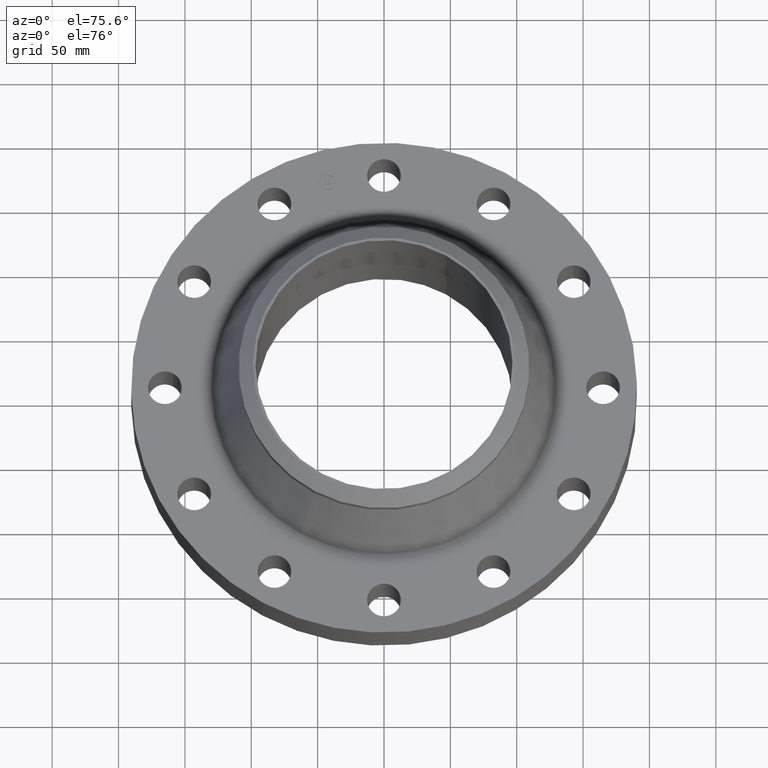
[diagram: clean part render]
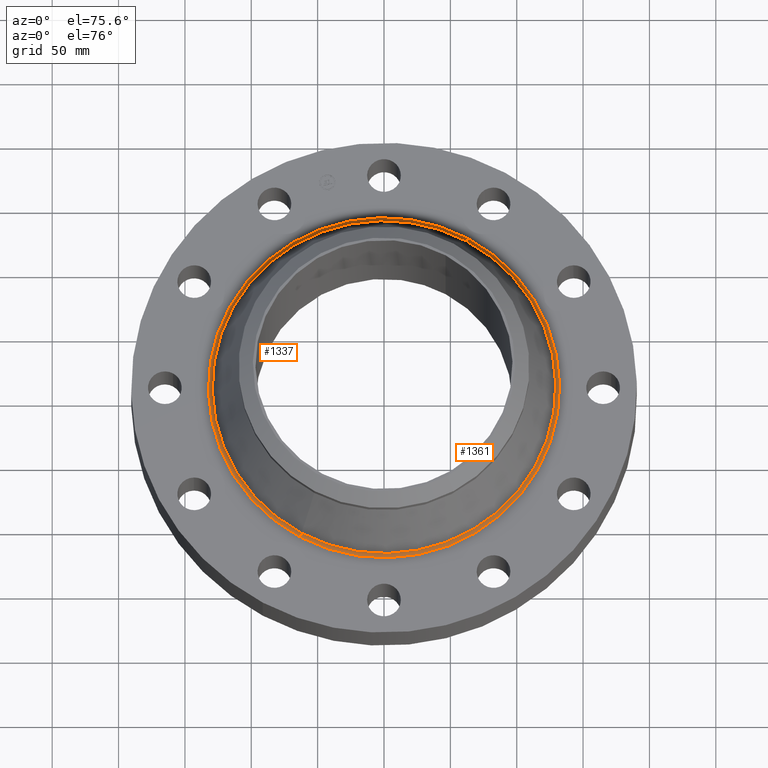
[diagram: same view with one multi-face feature highlighted, each face labeled with its STEP entity id]
A machine part, auxiliary view. The highlighted faces form ONE feature: a constant-radius fillet chain: 2 tangent blend faces with common blend radius 3.048 mm. The faces share edges in the B-rep.
Their STEP definitions:
[1] entity #1361 (Torus):
#426=AXIS2_PLACEMENT_3D('Circle Axis2P3D',#424,#425,$) ;
#1314=AXIS2_PLACEMENT_3D('Circle Axis2P3D',#1312,#1313,$) ;
#1328=AXIS2_PLACEMENT_3D('Circle Axis2P3D',#1326,#1327,$) ;
#1348=AXIS2_PLACEMENT_3D('Torus Axis2P3D',#1345,#1346,#1347) ;
#1352=AXIS2_PLACEMENT_3D('Circle Axis2P3D',#1350,#1351,$) ;
#419=CARTESIAN_POINT('Vertex',(-2.49717184861,-4.57104240788,1.56000000001)) ;
#421=CARTESIAN_POINT('Vertex',(2.49717184861,4.57104240788,1.56000000001)) ;
#424=CARTESIAN_POINT('Axis2P3D Location',(-4.3665928266E-011,1.71884204158E-011,1.56000000001)) ;
#1312=CARTESIAN_POINT('Axis2P3D Location',(-2.49717184861,-4.57104240788,1.68000000001)) ;
#1316=CARTESIAN_POINT('Vertex',(-2.4431878359,-4.47222533545,1.63851611678)) ;
#1323=CARTESIAN_POINT('Vertex',(2.4431878359,4.47222533545,1.63851611678)) ;
#1326=CARTESIAN_POINT('Axis2P3D Location',(2.49717184861,4.57104240788,1.68000000001)) ;
#1345=CARTESIAN_POINT('Axis2P3D Location',(0.,0.,1.68000000001)) ;
#1350=CARTESIAN_POINT('Axis2P3D Location',(0.,0.,1.63851611678)) ;
#425=DIRECTION('Axis2P3D Direction',(0.,0.,-0.0393700787402)) ;
#1313=DIRECTION('Axis2P3D Direction',(0.0345504945626,-0.0188750212049,0.)) ;
#1327=DIRECTION('Axis2P3D Direction',(-0.0345504945626,0.0188750212049,0.)) ;
#1346=DIRECTION('Axis2P3D Direction',(0.,0.,-0.0393700787402)) ;
#1347=DIRECTION('Axis2P3D XDirection',(0.0188750212049,0.0345504945626,0.)) ;
#1351=DIRECTION('Axis2P3D Direction',(-0.,0.,-0.0393700787402)) ;
#1356=ORIENTED_EDGE('',*,*,#428,.F.) ;
#1357=ORIENTED_EDGE('',*,*,#1330,.T.) ;
#1358=ORIENTED_EDGE('',*,*,#1354,.T.) ;
#1359=ORIENTED_EDGE('',*,*,#1318,.F.) ;
#1361=ADVANCED_FACE('PartBody',(#1360),#1349,.F.) ;
#427=CIRCLE('generated circle',#426,5.20867506535) ;
#1315=CIRCLE('generated circle',#1314,0.12) ;
#1329=CIRCLE('generated circle',#1328,0.12) ;
#1353=CIRCLE('generated circle',#1352,5.09607361137) ;
#1349=TOROIDAL_SURFACE('homeo Torus',#1348,5.20867506532,0.12) ;
#428=EDGE_CURVE('',#422,#420,#427,.T.) ;
#1318=EDGE_CURVE('',#420,#1317,#1315,.T.) ;
#1330=EDGE_CURVE('',#422,#1324,#1329,.T.) ;
#1354=EDGE_CURVE('',#1324,#1317,#1353,.T.) ;
#1355=EDGE_LOOP('',(#1356,#1357,#1358,#1359)) ;
#1360=FACE_OUTER_BOUND('',#1355,.T.) ;
#420=VERTEX_POINT('',#419) ;
#422=VERTEX_POINT('',#421) ;
#1317=VERTEX_POINT('',#1316) ;
#1324=VERTEX_POINT('',#1323) ;
[2] entity #1337 (Torus):
#417=AXIS2_PLACEMENT_3D('Circle Axis2P3D',#415,#416,$) ;
#1310=AXIS2_PLACEMENT_3D('Torus Axis2P3D',#1307,#1308,#1309) ;
#1314=AXIS2_PLACEMENT_3D('Circle Axis2P3D',#1312,#1313,$) ;
#1321=AXIS2_PLACEMENT_3D('Circle Axis2P3D',#1319,#1320,$) ;
#1328=AXIS2_PLACEMENT_3D('Circle Axis2P3D',#1326,#1327,$) ;
#415=CARTESIAN_POINT('Axis2P3D Location',(4.3665928266E-011,-3.05197686895E-011,1.56000000001)) ;
#419=CARTESIAN_POINT('Vertex',(-2.49717184861,-4.57104240788,1.56000000001)) ;
#421=CARTESIAN_POINT('Vertex',(2.49717184861,4.57104240788,1.56000000001)) ;
#1307=CARTESIAN_POINT('Axis2P3D Location',(0.,0.,1.68000000001)) ;
#1312=CARTESIAN_POINT('Axis2P3D Location',(-2.49717184861,-4.57104240788,1.68000000001)) ;
#1316=CARTESIAN_POINT('Vertex',(-2.4431878359,-4.47222533545,1.63851611678)) ;
#1319=CARTESIAN_POINT('Axis2P3D Location',(0.,0.,1.63851611678)) ;
#1323=CARTESIAN_POINT('Vertex',(2.4431878359,4.47222533545,1.63851611678)) ;
#1326=CARTESIAN_POINT('Axis2P3D Location',(2.49717184861,4.57104240788,1.68000000001)) ;
#416=DIRECTION('Axis2P3D Direction',(0.,0.,-0.0393700787402)) ;
#1308=DIRECTION('Axis2P3D Direction',(0.,0.,-0.0393700787402)) ;
#1309=DIRECTION('Axis2P3D XDirection',(-0.0188750212049,-0.0345504945626,0.)) ;
#1313=DIRECTION('Axis2P3D Direction',(0.0345504945626,-0.0188750212049,0.)) ;
#1320=DIRECTION('Axis2P3D Direction',(-0.,0.,-0.0393700787402)) ;
#1327=DIRECTION('Axis2P3D Direction',(-0.0345504945626,0.0188750212049,0.)) ;
#1332=ORIENTED_EDGE('',*,*,#423,.F.) ;
#1333=ORIENTED_EDGE('',*,*,#1318,.T.) ;
#1334=ORIENTED_EDGE('',*,*,#1325,.T.) ;
#1335=ORIENTED_EDGE('',*,*,#1330,.F.) ;
#1337=ADVANCED_FACE('PartBody',(#1336),#1311,.F.) ;
#418=CIRCLE('generated circle',#417,5.20867506535) ;
#1315=CIRCLE('generated circle',#1314,0.12) ;
#1322=CIRCLE('generated circle',#1321,5.09607361137) ;
#1329=CIRCLE('generated circle',#1328,0.12) ;
#1311=TOROIDAL_SURFACE('homeo Torus',#1310,5.20867506532,0.12) ;
#423=EDGE_CURVE('',#420,#422,#418,.T.) ;
#1318=EDGE_CURVE('',#420,#1317,#1315,.T.) ;
#1325=EDGE_CURVE('',#1317,#1324,#1322,.T.) ;
#1330=EDGE_CURVE('',#422,#1324,#1329,.T.) ;
#1331=EDGE_LOOP('',(#1332,#1333,#1334,#1335)) ;
#1336=FACE_OUTER_BOUND('',#1331,.T.) ;
#420=VERTEX_POINT('',#419) ;
#422=VERTEX_POINT('',#421) ;
#1317=VERTEX_POINT('',#1316) ;
#1324=VERTEX_POINT('',#1323) ;